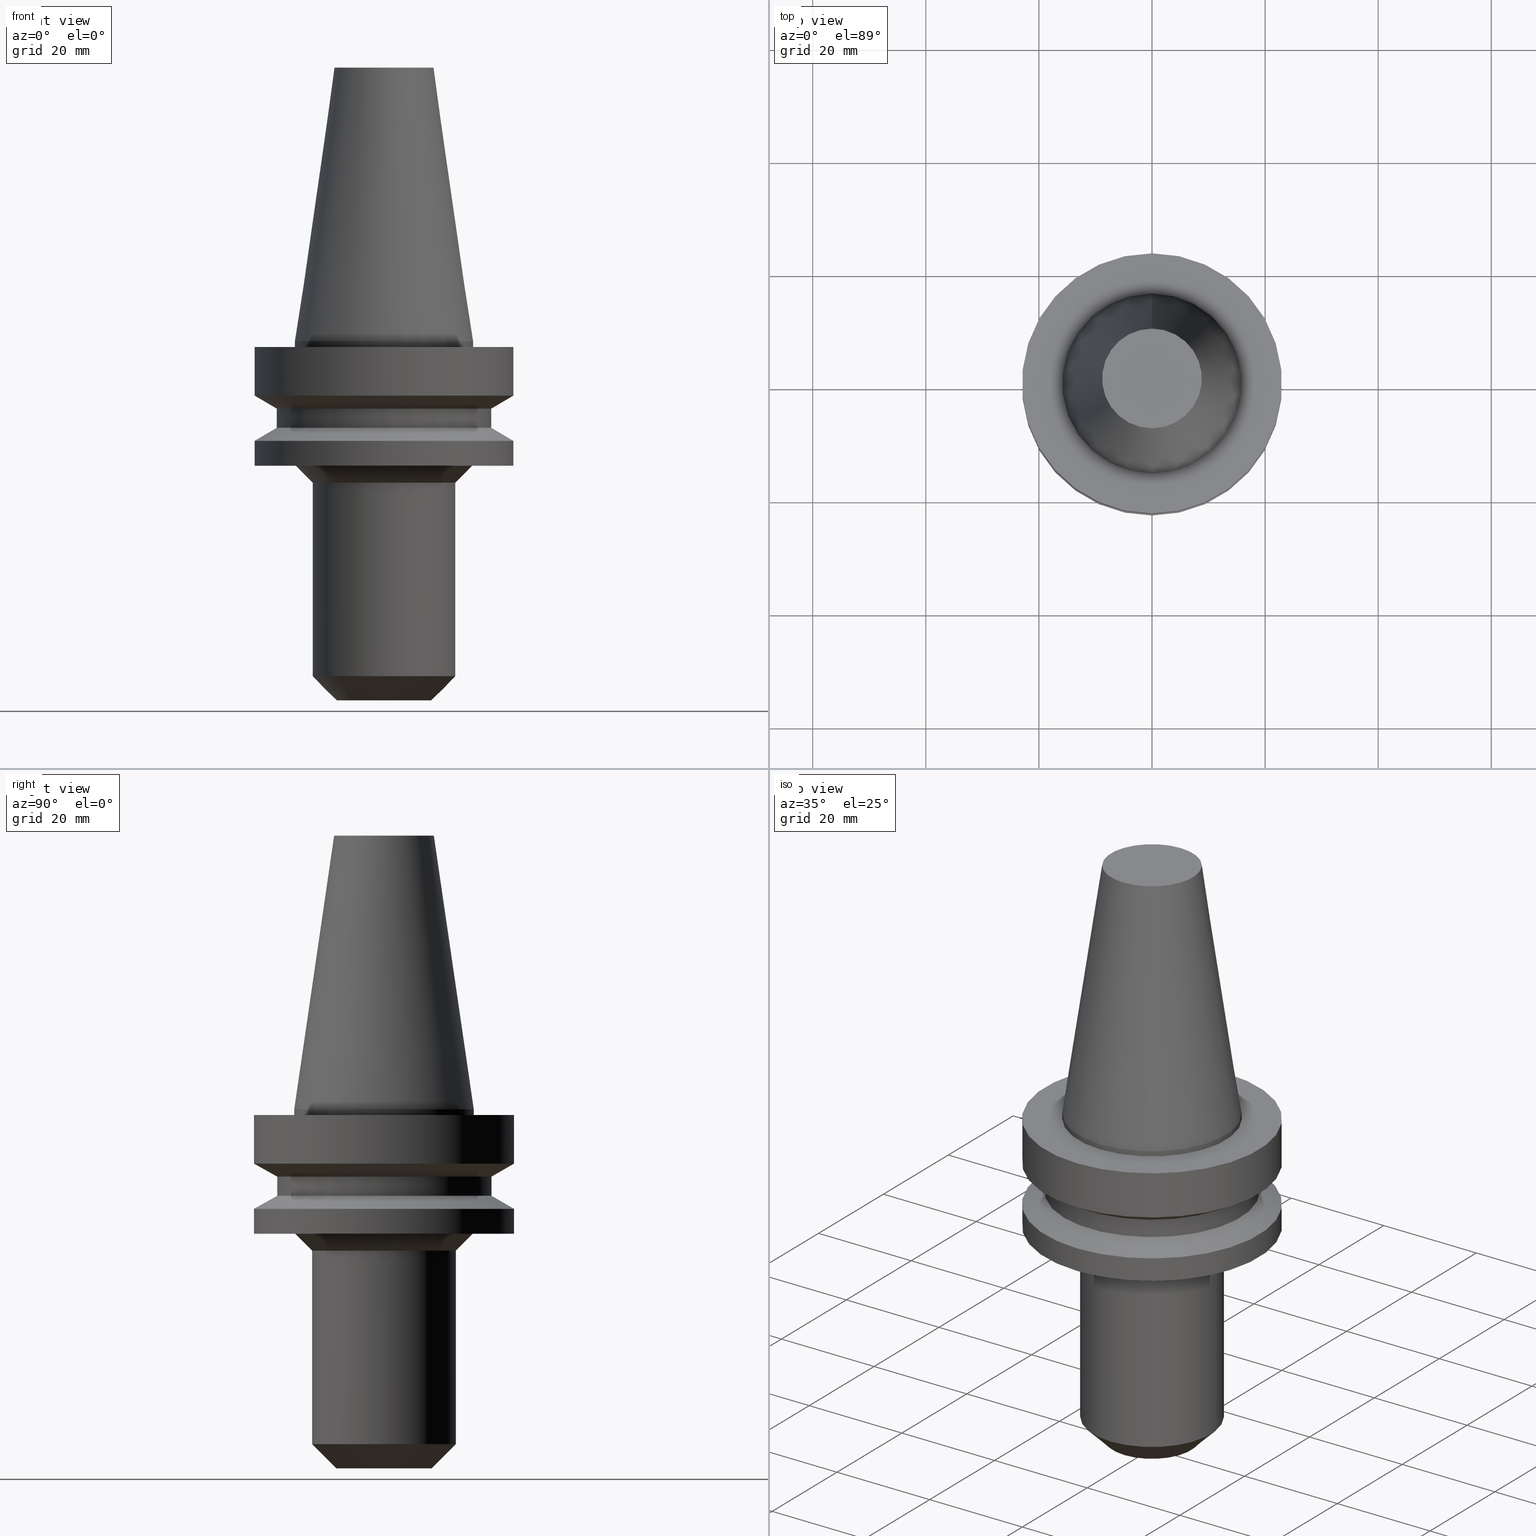
[diagram: canonical four-view strip — front | top / right | iso, engineering-drawing reading convention]
A machine part, canonical four-view strip (front | top / right | iso — engineering-drawing reading convention). The complete STEP part file that produces these views, byte-faithful:
ISO-10303-21;
HEADER;
FILE_DESCRIPTION((''),'1');
FILE_NAME('V:/90_\X2\53D65F9730C730FC30BF\X0\/00_\X2\6DE18DEF30C730FC30BF\X0\/ALL/BBT-BKUS\X2\FF76FF80FF9BFF78FF9E752852A05DE556F3\X0\201801/BBT30-EM/BBT30-EM.375-2.5.stp','2018-02-05T02:01:29',(''),(''),'Spatial Interop R21 SP3','Kubotek KeyCreator 2011 V10.0.2 (22737)',' ');
FILE_SCHEMA(('automotive_design'));
ENDSEC;
DATA;
#1=MECHANICAL_DESIGN_GEOMETRIC_PRESENTATION_REPRESENTATION(' ',(#10,#11,#12,#13,#14,#15,#16,#17,#18,#19,#20,#21,#22,#23,#24,#25,#26,#27,#28,#29,#30,#31,#32,#33,#34,#35,#36,#37),#6);
#2=PRODUCT_DEFINITION_CONTEXT('',#38,'design');
#3=APPLICATION_PROTOCOL_DEFINITION('INTERNATIONAL STANDARD','automotive_design',1994,#38);
#4=PRODUCT_CATEGORY_RELATIONSHIP('NONE','NONE',#39,#40);
#5=SHAPE_DEFINITION_REPRESENTATION(#41,#42);
#6= (GEOMETRIC_REPRESENTATION_CONTEXT(3)GLOBAL_UNCERTAINTY_ASSIGNED_CONTEXT((#45))GLOBAL_UNIT_ASSIGNED_CONTEXT((#47,#48,#49))REPRESENTATION_CONTEXT('NONE','WORKSPACE'));
#10=STYLED_ITEM('',(#51,#52),#53);
#11=STYLED_ITEM('',(#54,#55),#56);
#12=STYLED_ITEM('',(#57,#58),#59);
#13=STYLED_ITEM('',(#60),#61);
#14=STYLED_ITEM('',(#62),#63);
#15=STYLED_ITEM('',(#64),#65);
#16=STYLED_ITEM('',(#66),#67);
#17=STYLED_ITEM('',(#68,#69),#70);
#18=STYLED_ITEM('',(#71),#72);
#19=STYLED_ITEM('',(#73,#74),#75);
#20=STYLED_ITEM('',(#76),#77);
#21=STYLED_ITEM('',(#78),#79);
#22=STYLED_ITEM('',(#80),#81);
#23=STYLED_ITEM('',(#82),#83);
#24=STYLED_ITEM('',(#84),#85);
#25=STYLED_ITEM('',(#86,#87),#88);
#26=STYLED_ITEM('',(#89,#90),#91);
#27=STYLED_ITEM('',(#92,#93),#94);
#28=STYLED_ITEM('',(#95),#96);
#29=STYLED_ITEM('',(#97,#98),#99);
#30=STYLED_ITEM('',(#100,#101),#102);
#31=STYLED_ITEM('',(#103,#104),#105);
#32=STYLED_ITEM('',(#106,#107),#108);
#33=STYLED_ITEM('',(#109,#110),#111);
#34=STYLED_ITEM('',(#112),#113);
#35=STYLED_ITEM('',(#114,#115),#116);
#36=STYLED_ITEM('',(#117,#118),#119);
#37=STYLED_ITEM('',(#120),#121);
#38=APPLICATION_CONTEXT(' ');
#39=PRODUCT_CATEGORY('part','NONE');
#40=PRODUCT_RELATED_PRODUCT_CATEGORY('detail',' ',(#122));
#41=PRODUCT_DEFINITION_SHAPE('NONE','NONE',#123);
#42=ADVANCED_BREP_SHAPE_REPRESENTATION('Unnamed[1]',(#53,#124),#6);
#45=UNCERTAINTY_MEASURE_WITH_UNIT(LENGTH_MEASURE(1.0E-006),#47,'','');
#47= (CONVERSION_BASED_UNIT('MILLIMETRE',#127)LENGTH_UNIT()NAMED_UNIT(#130));
#48= (NAMED_UNIT(#132)PLANE_ANGLE_UNIT()SI_UNIT($,.RADIAN.));
#49= (NAMED_UNIT(#132)SOLID_ANGLE_UNIT()SI_UNIT($,.STERADIAN.));
#51=PRESENTATION_STYLE_ASSIGNMENT((#138));
#52=PRESENTATION_STYLE_ASSIGNMENT((#139));
#53=MANIFOLD_SOLID_BREP('Unnamed[1]',#140);
#54=PRESENTATION_STYLE_ASSIGNMENT((#141));
#55=PRESENTATION_STYLE_ASSIGNMENT((#142));
#56=ADVANCED_FACE('Unnamed[1]',(#143,#144),#145,.T.);
#57=PRESENTATION_STYLE_ASSIGNMENT((#146));
#58=PRESENTATION_STYLE_ASSIGNMENT((#147));
#59=ADVANCED_FACE('Unnamed[1]',(#148),#149,.T.);
#60=PRESENTATION_STYLE_ASSIGNMENT((#150));
#61=EDGE_CURVE('Unnamed[1]',#151,#151,#152,.T.);
#62=PRESENTATION_STYLE_ASSIGNMENT((#153));
#63=EDGE_CURVE('Unnamed[1]',#154,#154,#155,.T.);
#64=PRESENTATION_STYLE_ASSIGNMENT((#156));
#65=EDGE_CURVE('Unnamed[1]',#157,#157,#158,.T.);
#66=PRESENTATION_STYLE_ASSIGNMENT((#159));
#67=EDGE_CURVE('Unnamed[1]',#160,#160,#161,.T.);
#68=PRESENTATION_STYLE_ASSIGNMENT((#162));
#69=PRESENTATION_STYLE_ASSIGNMENT((#163));
#70=ADVANCED_FACE('Unnamed[1]',(#164,#165),#166,.T.);
#71=PRESENTATION_STYLE_ASSIGNMENT((#167));
#72=EDGE_CURVE('Unnamed[1]',#168,#168,#169,.T.);
#73=PRESENTATION_STYLE_ASSIGNMENT((#170));
#74=PRESENTATION_STYLE_ASSIGNMENT((#171));
#75=ADVANCED_FACE('Unnamed[1]',(#172),#173,.T.);
#76=PRESENTATION_STYLE_ASSIGNMENT((#174));
#77=EDGE_CURVE('Unnamed[1]',#175,#175,#176,.T.);
#78=PRESENTATION_STYLE_ASSIGNMENT((#177));
#79=EDGE_CURVE('Unnamed[1]',#178,#178,#179,.T.);
#80=PRESENTATION_STYLE_ASSIGNMENT((#180));
#81=EDGE_CURVE('Unnamed[1]',#181,#181,#182,.T.);
#82=PRESENTATION_STYLE_ASSIGNMENT((#183));
#83=EDGE_CURVE('Unnamed[1]',#184,#184,#185,.T.);
#84=PRESENTATION_STYLE_ASSIGNMENT((#186));
#85=EDGE_CURVE('Unnamed[1]',#187,#187,#188,.T.);
#86=PRESENTATION_STYLE_ASSIGNMENT((#189));
#87=PRESENTATION_STYLE_ASSIGNMENT((#190));
#88=ADVANCED_FACE('Unnamed[1]',(#191,#192),#193,.T.);
#89=PRESENTATION_STYLE_ASSIGNMENT((#194));
#90=PRESENTATION_STYLE_ASSIGNMENT((#195));
#91=ADVANCED_FACE('Unnamed[1]',(#196,#197),#198,.T.);
#92=PRESENTATION_STYLE_ASSIGNMENT((#199));
#93=PRESENTATION_STYLE_ASSIGNMENT((#200));
#94=ADVANCED_FACE('Unnamed[1]',(#201,#202),#203,.T.);
#95=PRESENTATION_STYLE_ASSIGNMENT((#204));
#96=EDGE_CURVE('Unnamed[1]',#205,#205,#206,.T.);
#97=PRESENTATION_STYLE_ASSIGNMENT((#207));
#98=PRESENTATION_STYLE_ASSIGNMENT((#208));
#99=ADVANCED_FACE('Unnamed[1]',(#209,#210),#211,.T.);
#100=PRESENTATION_STYLE_ASSIGNMENT((#212));
#101=PRESENTATION_STYLE_ASSIGNMENT((#213));
#102=ADVANCED_FACE('Unnamed[1]',(#214,#215),#216,.T.);
#103=PRESENTATION_STYLE_ASSIGNMENT((#217));
#104=PRESENTATION_STYLE_ASSIGNMENT((#218));
#105=ADVANCED_FACE('Unnamed[1]',(#219,#220),#221,.T.);
#106=PRESENTATION_STYLE_ASSIGNMENT((#222));
#107=PRESENTATION_STYLE_ASSIGNMENT((#223));
#108=ADVANCED_FACE('Unnamed[1]',(#224,#225),#226,.T.);
#109=PRESENTATION_STYLE_ASSIGNMENT((#227));
#110=PRESENTATION_STYLE_ASSIGNMENT((#228));
#111=ADVANCED_FACE('Unnamed[1]',(#229,#230),#231,.T.);
#112=PRESENTATION_STYLE_ASSIGNMENT((#232));
#113=EDGE_CURVE('Unnamed[1]',#233,#233,#234,.T.);
#114=PRESENTATION_STYLE_ASSIGNMENT((#235));
#115=PRESENTATION_STYLE_ASSIGNMENT((#236));
#116=ADVANCED_FACE('Unnamed[1]',(#237,#238),#239,.T.);
#117=PRESENTATION_STYLE_ASSIGNMENT((#240));
#118=PRESENTATION_STYLE_ASSIGNMENT((#241));
#119=ADVANCED_FACE('Unnamed[1]',(#242,#243),#244,.T.);
#120=PRESENTATION_STYLE_ASSIGNMENT((#245));
#121=EDGE_CURVE('Unnamed[1]',#246,#246,#247,.T.);
#122=PRODUCT('Unnamed[1]','Unnamed[1]','PART-Unnamed[1]-DESC',(#248));
#123=PRODUCT_DEFINITION('NONE','NONE',#249,#2);
#124=AXIS2_PLACEMENT_3D('',#250,#251,#252);
#127=LENGTH_MEASURE_WITH_UNIT(LENGTH_MEASURE(1.0),#253);
#130=DIMENSIONAL_EXPONENTS(1.0,0.0,0.0,0.0,0.0,0.0,0.0);
#132=DIMENSIONAL_EXPONENTS(0.0,0.0,0.0,0.0,0.0,0.0,0.0);
#138=SURFACE_STYLE_USAGE(.BOTH.,#254);
#139=CURVE_STYLE('',#255,POSITIVE_LENGTH_MEASURE(1000.0),#256);
#140=CLOSED_SHELL('',(#59,#88,#105,#108,#70,#91,#94,#99,#119,#111,#116,#56,#102,#75));
#141=SURFACE_STYLE_USAGE(.BOTH.,#257);
#142=CURVE_STYLE('',#258,POSITIVE_LENGTH_MEASURE(1000.0),#259);
#143=FACE_BOUND('',#260,.T.);
#144=FACE_BOUND('',#261,.T.);
#145=CYLINDRICAL_SURFACE('',#262,12.7000000000001);
#146=SURFACE_STYLE_USAGE(.BOTH.,#263);
#147=CURVE_STYLE('',#264,POSITIVE_LENGTH_MEASURE(1000.0),#265);
#148=FACE_OUTER_BOUND('',#266,.T.);
#149=PLANE('',#267);
#150=CURVE_STYLE('',#268,POSITIVE_LENGTH_MEASURE(1000.0),#269);
#151=VERTEX_POINT('',#270);
#152=CIRCLE('',#271,8.81650000198669);
#153=CURVE_STYLE('',#272,POSITIVE_LENGTH_MEASURE(1000.0),#273);
#154=VERTEX_POINT('',#274);
#155=CIRCLE('',#275,23.0);
#156=CURVE_STYLE('',#276,POSITIVE_LENGTH_MEASURE(1000.0),#277);
#157=VERTEX_POINT('',#278);
#158=CIRCLE('',#279,12.7000000000001);
#159=CURVE_STYLE('',#280,POSITIVE_LENGTH_MEASURE(1000.0),#281);
#160=VERTEX_POINT('',#282);
#161=CIRCLE('',#283,15.875);
#162=SURFACE_STYLE_USAGE(.BOTH.,#284);
#163=CURVE_STYLE('',#285,POSITIVE_LENGTH_MEASURE(1000.0),#286);
#164=FACE_BOUND('',#287,.T.);
#165=FACE_BOUND('',#288,.T.);
#166=CYLINDRICAL_SURFACE('',#289,23.0);
#167=CURVE_STYLE('',#290,POSITIVE_LENGTH_MEASURE(1000.0),#291);
#168=VERTEX_POINT('',#292);
#169=CIRCLE('',#293,19.0);
#170=SURFACE_STYLE_USAGE(.BOTH.,#294);
#171=CURVE_STYLE('',#295,POSITIVE_LENGTH_MEASURE(1000.0),#296);
#172=FACE_OUTER_BOUND('',#297,.T.);
#173=PLANE('',#298);
#174=CURVE_STYLE('',#299,POSITIVE_LENGTH_MEASURE(1000.0),#300);
#175=VERTEX_POINT('',#301);
#176=CIRCLE('',#302,23.0);
#177=CURVE_STYLE('',#303,POSITIVE_LENGTH_MEASURE(1000.0),#304);
#178=VERTEX_POINT('',#305);
#179=CIRCLE('',#306,8.39999999999989);
#180=CURVE_STYLE('',#307,POSITIVE_LENGTH_MEASURE(1000.0),#308);
#181=VERTEX_POINT('',#309);
#182=CIRCLE('',#310,12.7000000000001);
#183=CURVE_STYLE('',#311,POSITIVE_LENGTH_MEASURE(1000.0),#312);
#184=VERTEX_POINT('',#313);
#185=CIRCLE('',#314,15.875);
#186=CURVE_STYLE('',#315,POSITIVE_LENGTH_MEASURE(1000.0),#316);
#187=VERTEX_POINT('',#317);
#188=CIRCLE('',#318,19.0);
#189=SURFACE_STYLE_USAGE(.BOTH.,#319);
#190=CURVE_STYLE('',#320,POSITIVE_LENGTH_MEASURE(1000.0),#321);
#191=FACE_BOUND('',#322,.T.);
#192=FACE_BOUND('',#323,.T.);
#193=CONICAL_SURFACE('',#324,12.3457500009933,0.144815870013619);
#194=SURFACE_STYLE_USAGE(.BOTH.,#325);
#195=CURVE_STYLE('',#326,POSITIVE_LENGTH_MEASURE(1000.0),#327);
#196=FACE_BOUND('',#328,.T.);
#197=FACE_BOUND('',#329,.T.);
#198=CONICAL_SURFACE('',#330,21.0,1.04719755058881);
#199=SURFACE_STYLE_USAGE(.BOTH.,#331);
#200=CURVE_STYLE('',#332,POSITIVE_LENGTH_MEASURE(1000.0),#333);
#201=FACE_BOUND('',#334,.T.);
#202=FACE_BOUND('',#335,.T.);
#203=CYLINDRICAL_SURFACE('',#336,19.0);
#204=CURVE_STYLE('',#337,POSITIVE_LENGTH_MEASURE(1000.0),#338);
#205=VERTEX_POINT('',#339);
#206=CIRCLE('',#340,15.7000000000001);
#207=SURFACE_STYLE_USAGE(.BOTH.,#341);
#208=CURVE_STYLE('',#342,POSITIVE_LENGTH_MEASURE(1000.0),#343);
#209=FACE_BOUND('',#344,.T.);
#210=FACE_BOUND('',#345,.T.);
#211=CONICAL_SURFACE('',#346,21.0,1.04719755058882);
#212=SURFACE_STYLE_USAGE(.BOTH.,#347);
#213=CURVE_STYLE('',#348,POSITIVE_LENGTH_MEASURE(1000.0),#349);
#214=FACE_BOUND('',#350,.T.);
#215=FACE_BOUND('',#351,.T.);
#216=CONICAL_SURFACE('',#352,10.55,0.785398163397519);
#217=SURFACE_STYLE_USAGE(.BOTH.,#353);
#218=CURVE_STYLE('',#354,POSITIVE_LENGTH_MEASURE(1000.0),#355);
#219=FACE_BOUND('',#356,.T.);
#220=FACE_BOUND('',#357,.T.);
#221=CYLINDRICAL_SURFACE('',#358,15.875);
#222=SURFACE_STYLE_USAGE(.BOTH.,#359);
#223=CURVE_STYLE('',#360,POSITIVE_LENGTH_MEASURE(1000.0),#361);
#224=FACE_OUTER_BOUND('',#362,.T.);
#225=FACE_BOUND('',#363,.T.);
#226=PLANE('',#364);
#227=SURFACE_STYLE_USAGE(.BOTH.,#365);
#228=CURVE_STYLE('',#366,POSITIVE_LENGTH_MEASURE(1000.0),#367);
#229=FACE_BOUND('',#368,.T.);
#230=FACE_OUTER_BOUND('',#369,.T.);
#231=PLANE('',#370);
#232=CURVE_STYLE('',#371,POSITIVE_LENGTH_MEASURE(1000.0),#372);
#233=VERTEX_POINT('',#373);
#234=CIRCLE('',#374,23.0);
#235=SURFACE_STYLE_USAGE(.BOTH.,#375);
#236=CURVE_STYLE('',#376,POSITIVE_LENGTH_MEASURE(1000.0),#377);
#237=FACE_BOUND('',#378,.T.);
#238=FACE_BOUND('',#379,.T.);
#239=CONICAL_SURFACE('',#380,14.2000000000001,0.785398163397448);
#240=SURFACE_STYLE_USAGE(.BOTH.,#381);
#241=CURVE_STYLE('',#382,POSITIVE_LENGTH_MEASURE(1000.0),#383);
#242=FACE_BOUND('',#384,.T.);
#243=FACE_BOUND('',#385,.T.);
#244=CYLINDRICAL_SURFACE('',#386,23.0);
#245=CURVE_STYLE('',#387,POSITIVE_LENGTH_MEASURE(1000.0),#388);
#246=VERTEX_POINT('',#389);
#247=CIRCLE('',#390,23.0);
#248=PRODUCT_CONTEXT('',#38,'mechanical');
#249=PRODUCT_DEFINITION_FORMATION_WITH_SPECIFIED_SOURCE(' ','NONE',#122,.NOT_KNOWN.);
#250=CARTESIAN_POINT('',(0.0,0.0,0.0));
#251=DIRECTION('',(0.0,0.0,1.0));
#252=DIRECTION('',(1.0,0.0,0.0));
#253= (NAMED_UNIT(#130)LENGTH_UNIT()SI_UNIT(.MILLI.,.METRE.));
#254=SURFACE_SIDE_STYLE('',(#392));
#255=DRAUGHTING_PRE_DEFINED_CURVE_FONT('continuous');
#256=COLOUR_RGB('',0.0,1.0,0.0);
#257=SURFACE_SIDE_STYLE('',(#393));
#258=DRAUGHTING_PRE_DEFINED_CURVE_FONT('continuous');
#259=COLOUR_RGB('',0.0,1.0,0.0);
#260=EDGE_LOOP('',(#394));
#261=EDGE_LOOP('',(#395));
#262=AXIS2_PLACEMENT_3D('',#396,#397,#398);
#263=SURFACE_SIDE_STYLE('',(#399));
#264=DRAUGHTING_PRE_DEFINED_CURVE_FONT('continuous');
#265=COLOUR_RGB('',0.0,1.0,0.0);
#266=EDGE_LOOP('',(#400));
#267=AXIS2_PLACEMENT_3D('',#401,#402,#403);
#268=DRAUGHTING_PRE_DEFINED_CURVE_FONT('continuous');
#269=COLOUR_RGB('',0.0,1.0,0.0);
#270=CARTESIAN_POINT('',(-2.96364525393659E-015,8.81650000198669,48.4));
#271=AXIS2_PLACEMENT_3D('',#404,#405,#406);
#272=DRAUGHTING_PRE_DEFINED_CURVE_FONT('continuous');
#273=COLOUR_RGB('',0.0,1.0,0.0);
#274=CARTESIAN_POINT('',(5.87830463590729E-016,23.0,-9.59999999999999));
#275=AXIS2_PLACEMENT_3D('',#407,#408,#409);
#276=DRAUGHTING_PRE_DEFINED_CURVE_FONT('continuous');
#277=COLOUR_RGB('',0.0,1.0,0.0);
#278=CARTESIAN_POINT('',(1.53080849893419E-015,12.7000000000001,-25.0));
#279=AXIS2_PLACEMENT_3D('',#410,#411,#412);
#280=DRAUGHTING_PRE_DEFINED_CURVE_FONT('continuous');
#281=COLOUR_RGB('',0.0,1.0,0.0);
#282=CARTESIAN_POINT('',(6.12323399573675E-017,15.875,-0.999999999999998));
#283=AXIS2_PLACEMENT_3D('',#413,#414,#415);
#284=SURFACE_SIDE_STYLE('',(#416));
#285=DRAUGHTING_PRE_DEFINED_CURVE_FONT('continuous');
#286=COLOUR_RGB('',0.0,1.0,0.0);
#287=EDGE_LOOP('',(#417));
#288=EDGE_LOOP('',(#418));
#289=AXIS2_PLACEMENT_3D('',#419,#420,#421);
#290=DRAUGHTING_PRE_DEFINED_CURVE_FONT('continuous');
#291=COLOUR_RGB('',0.0,1.0,0.0);
#292=CARTESIAN_POINT('',(9.36279151221199E-016,19.0,-15.29059892));
#293=AXIS2_PLACEMENT_3D('',#422,#423,#424);
#294=SURFACE_SIDE_STYLE('',(#425));
#295=DRAUGHTING_PRE_DEFINED_CURVE_FONT('continuous');
#296=COLOUR_RGB('',0.0,1.0,0.0);
#297=EDGE_LOOP('',(#426));
#298=AXIS2_PLACEMENT_3D('',#427,#428,#429);
#299=DRAUGHTING_PRE_DEFINED_CURVE_FONT('continuous');
#300=COLOUR_RGB('',0.0,1.0,0.0);
#301=CARTESIAN_POINT('',(1.34711147906209E-015,23.0,-22.0));
#302=AXIS2_PLACEMENT_3D('',#430,#431,#432);
#303=DRAUGHTING_PRE_DEFINED_CURVE_FONT('continuous');
#304=COLOUR_RGB('',0.0,1.0,0.0);
#305=CARTESIAN_POINT('',(3.88825358729285E-015,8.3999999999999,-63.5));
#306=AXIS2_PLACEMENT_3D('',#433,#434,#435);
#307=DRAUGHTING_PRE_DEFINED_CURVE_FONT('continuous');
#308=COLOUR_RGB('',0.0,1.0,0.0);
#309=CARTESIAN_POINT('',(3.62495452547619E-015,12.7000000000001,-59.2000000000004));
#310=AXIS2_PLACEMENT_3D('',#436,#437,#438);
#311=DRAUGHTING_PRE_DEFINED_CURVE_FONT('continuous');
#312=COLOUR_RGB('',0.0,1.0,0.0);
#313=CARTESIAN_POINT('',(-1.95674482349743E-031,15.875,1.94412679364642E-015));
#314=AXIS2_PLACEMENT_3D('',#439,#440,#441);
#315=DRAUGHTING_PRE_DEFINED_CURVE_FONT('continuous');
#316=COLOUR_RGB('',0.0,1.0,0.0);
#317=CARTESIAN_POINT('',(7.29240495619202E-016,19.0,-11.90940108));
#318=AXIS2_PLACEMENT_3D('',#442,#443,#444);
#319=SURFACE_SIDE_STYLE('',(#445));
#320=DRAUGHTING_PRE_DEFINED_CURVE_FONT('continuous');
#321=COLOUR_RGB('',0.0,1.0,0.0);
#322=EDGE_LOOP('',(#446));
#323=EDGE_LOOP('',(#447));
#324=AXIS2_PLACEMENT_3D('',#448,#449,#450);
#325=SURFACE_SIDE_STYLE('',(#451));
#326=DRAUGHTING_PRE_DEFINED_CURVE_FONT('continuous');
#327=COLOUR_RGB('',0.0,1.0,0.0);
#328=EDGE_LOOP('',(#452));
#329=EDGE_LOOP('',(#453));
#330=AXIS2_PLACEMENT_3D('',#454,#455,#456);
#331=SURFACE_SIDE_STYLE('',(#457));
#332=DRAUGHTING_PRE_DEFINED_CURVE_FONT('continuous');
#333=COLOUR_RGB('',0.0,1.0,0.0);
#334=EDGE_LOOP('',(#458));
#335=EDGE_LOOP('',(#459));
#336=AXIS2_PLACEMENT_3D('',#460,#461,#462);
#337=DRAUGHTING_PRE_DEFINED_CURVE_FONT('continuous');
#338=COLOUR_RGB('',0.0,1.0,0.0);
#339=CARTESIAN_POINT('',(1.34711147906209E-015,15.7000000000001,-22.0));
#340=AXIS2_PLACEMENT_3D('',#463,#464,#465);
#341=SURFACE_SIDE_STYLE('',(#466));
#342=DRAUGHTING_PRE_DEFINED_CURVE_FONT('continuous');
#343=COLOUR_RGB('',0.0,1.0,0.0);
#344=EDGE_LOOP('',(#467));
#345=EDGE_LOOP('',(#468));
#346=AXIS2_PLACEMENT_3D('',#469,#470,#471);
#347=SURFACE_SIDE_STYLE('',(#472));
#348=DRAUGHTING_PRE_DEFINED_CURVE_FONT('continuous');
#349=COLOUR_RGB('',0.0,1.0,0.0);
#350=EDGE_LOOP('',(#473));
#351=EDGE_LOOP('',(#474));
#352=AXIS2_PLACEMENT_3D('',#475,#476,#477);
#353=SURFACE_SIDE_STYLE('',(#478));
#354=DRAUGHTING_PRE_DEFINED_CURVE_FONT('continuous');
#355=COLOUR_RGB('',0.0,1.0,0.0);
#356=EDGE_LOOP('',(#479));
#357=EDGE_LOOP('',(#480));
#358=AXIS2_PLACEMENT_3D('',#481,#482,#483);
#359=SURFACE_SIDE_STYLE('',(#484));
#360=DRAUGHTING_PRE_DEFINED_CURVE_FONT('continuous');
#361=COLOUR_RGB('',0.0,1.0,0.0);
#362=EDGE_LOOP('',(#485));
#363=EDGE_LOOP('',(#486));
#364=AXIS2_PLACEMENT_3D('',#487,#488,#489);
#365=SURFACE_SIDE_STYLE('',(#490));
#366=DRAUGHTING_PRE_DEFINED_CURVE_FONT('continuous');
#367=COLOUR_RGB('',0.0,1.0,0.0);
#368=EDGE_LOOP('',(#491));
#369=EDGE_LOOP('',(#492));
#370=AXIS2_PLACEMENT_3D('',#493,#494,#495);
#371=DRAUGHTING_PRE_DEFINED_CURVE_FONT('continuous');
#372=COLOUR_RGB('',0.0,1.0,0.0);
#373=CARTESIAN_POINT('',(1.07768918324967E-015,23.0,-17.6));
#374=AXIS2_PLACEMENT_3D('',#496,#497,#498);
#375=SURFACE_SIDE_STYLE('',(#499));
#376=DRAUGHTING_PRE_DEFINED_CURVE_FONT('continuous');
#377=COLOUR_RGB('',0.0,1.0,0.0);
#378=EDGE_LOOP('',(#500));
#379=EDGE_LOOP('',(#501));
#380=AXIS2_PLACEMENT_3D('',#502,#503,#504);
#381=SURFACE_SIDE_STYLE('',(#505));
#382=DRAUGHTING_PRE_DEFINED_CURVE_FONT('continuous');
#383=COLOUR_RGB('',0.0,1.0,0.0);
#384=EDGE_LOOP('',(#506));
#385=EDGE_LOOP('',(#507));
#386=AXIS2_PLACEMENT_3D('',#508,#509,#510);
#387=DRAUGHTING_PRE_DEFINED_CURVE_FONT('continuous');
#388=COLOUR_RGB('',0.0,1.0,0.0);
#389=CARTESIAN_POINT('',(6.12323399573674E-017,23.0,-0.999999999999997));
#390=AXIS2_PLACEMENT_3D('',#511,#512,#513);
#392=SURFACE_STYLE_FILL_AREA(#514);
#393=SURFACE_STYLE_FILL_AREA(#515);
#394=ORIENTED_EDGE('',*,*,#81,.F.);
#395=ORIENTED_EDGE('',*,*,#65,.T.);
#396=CARTESIAN_POINT('',(2.57788151220519E-015,5.15576302441038E-015,-42.1000000000002));
#397=DIRECTION('',(6.12323399573677E-017,1.22464679914735E-016,-1.0));
#398=DIRECTION('',(-1.23259516440783E-032,1.0,1.22464679914735E-016));
#399=SURFACE_STYLE_FILL_AREA(#516);
#400=ORIENTED_EDGE('',*,*,#61,.F.);
#401=CARTESIAN_POINT('',(-2.96364525393659E-015,4.40825000099334,48.4));
#402=DIRECTION('',(-6.12323399573677E-017,-1.22464679914735E-016,1.0));
#403=DIRECTION('',(1.23259516440783E-032,-1.0,-1.22464679914735E-016));
#404=CARTESIAN_POINT('',(-2.96364525393659E-015,-5.92729050787319E-015,48.4));
#405=DIRECTION('',(6.12323399573677E-017,1.22464679914735E-016,-1.0));
#406=DIRECTION('',(-1.23259516440783E-032,1.0,1.22464679914735E-016));
#407=CARTESIAN_POINT('',(5.87830463590729E-016,1.17566092718146E-015,-9.59999999999999));
#408=DIRECTION('',(6.12323399573677E-017,1.22464679914735E-016,-1.0));
#409=DIRECTION('',(-1.23259516440783E-032,1.0,1.22464679914735E-016));
#410=CARTESIAN_POINT('',(1.53080849893419E-015,3.06161699786839E-015,-25.0));
#411=DIRECTION('',(6.12323399573677E-017,1.22464679914735E-016,-1.0));
#412=DIRECTION('',(-1.23259516440783E-032,1.0,1.22464679914735E-016));
#413=CARTESIAN_POINT('',(6.12323399573677E-017,1.22464679914735E-016,-1.0));
#414=DIRECTION('',(6.12323399573677E-017,1.22464679914735E-016,-1.0));
#415=DIRECTION('',(-1.23259516440783E-032,1.0,1.22464679914735E-016));
#416=SURFACE_STYLE_FILL_AREA(#517);
#417=ORIENTED_EDGE('',*,*,#63,.F.);
#418=ORIENTED_EDGE('',*,*,#121,.T.);
#419=CARTESIAN_POINT('',(3.24531401774048E-016,6.49062803548097E-016,-5.3));
#420=DIRECTION('',(6.12323399573677E-017,1.22464679914735E-016,-1.0));
#421=DIRECTION('',(-1.23259516440783E-032,1.0,1.22464679914735E-016));
#422=CARTESIAN_POINT('',(9.36279151221199E-016,1.8725583024424E-015,-15.29059892));
#423=DIRECTION('',(6.12323399573677E-017,1.22464679914735E-016,-1.0));
#424=DIRECTION('',(-1.23259516440783E-032,1.0,1.22464679914735E-016));
#425=SURFACE_STYLE_FILL_AREA(#518);
#426=ORIENTED_EDGE('',*,*,#79,.T.);
#427=CARTESIAN_POINT('',(3.88825358729285E-015,4.19999999999995,-63.5));
#428=DIRECTION('',(6.12323399573677E-017,-3.26107215703817E-015,-1.0));
#429=DIRECTION('',(1.94855926214498E-031,1.0,-3.26107215703817E-015));
#430=CARTESIAN_POINT('',(1.34711147906209E-015,2.69422295812418E-015,-22.0));
#431=DIRECTION('',(6.12323399573677E-017,1.22464679914735E-016,-1.0));
#432=DIRECTION('',(-1.23259516440783E-032,1.0,1.22464679914735E-016));
#433=CARTESIAN_POINT('',(3.88825358729285E-015,7.77650717458569E-015,-63.5));
#434=DIRECTION('',(6.12323399573677E-017,1.22464679914735E-016,-1.0));
#435=DIRECTION('',(-1.23259516440783E-032,1.0,1.22464679914735E-016));
#436=CARTESIAN_POINT('',(3.62495452547619E-015,7.24990905095238E-015,-59.2000000000004));
#437=DIRECTION('',(6.12323399573677E-017,1.22464679914735E-016,-1.0));
#438=DIRECTION('',(-1.23259516440783E-032,1.0,1.22464679914735E-016));
#439=CARTESIAN_POINT('',(0.0,0.0,0.0));
#440=DIRECTION('',(6.12323399573677E-017,1.22464679914735E-016,-1.0));
#441=DIRECTION('',(-1.23259516440783E-032,1.0,1.22464679914735E-016));
#442=CARTESIAN_POINT('',(7.29240495619202E-016,1.4584809912384E-015,-11.90940108));
#443=DIRECTION('',(6.12323399573677E-017,1.22464679914735E-016,-1.0));
#444=DIRECTION('',(-1.23259516440783E-032,1.0,1.22464679914735E-016));
#445=SURFACE_STYLE_FILL_AREA(#519);
#446=ORIENTED_EDGE('',*,*,#83,.F.);
#447=ORIENTED_EDGE('',*,*,#61,.T.);
#448=CARTESIAN_POINT('',(-1.4818226269683E-015,-2.96364525393659E-015,24.2));
#449=DIRECTION('',(6.12323399573677E-017,1.22464679914735E-016,-1.0));
#450=DIRECTION('',(-1.23259516440783E-032,1.0,1.22464679914735E-016));
#451=SURFACE_STYLE_FILL_AREA(#520);
#452=ORIENTED_EDGE('',*,*,#85,.F.);
#453=ORIENTED_EDGE('',*,*,#63,.T.);
#454=CARTESIAN_POINT('',(6.58535479604966E-016,1.31707095920993E-015,-10.75470054));
#455=DIRECTION('',(-6.12323399573677E-017,-1.22464679914735E-016,1.0));
#456=DIRECTION('',(-1.23259516440783E-032,1.0,1.22464679914735E-016));
#457=SURFACE_STYLE_FILL_AREA(#521);
#458=ORIENTED_EDGE('',*,*,#72,.F.);
#459=ORIENTED_EDGE('',*,*,#85,.T.);
#460=CARTESIAN_POINT('',(8.32759823420201E-016,1.6655196468404E-015,-13.6));
#461=DIRECTION('',(6.12323399573677E-017,1.22464679914735E-016,-1.0));
#462=DIRECTION('',(-1.23259516440783E-032,1.0,1.22464679914735E-016));
#463=CARTESIAN_POINT('',(1.34711147906209E-015,2.69422295812418E-015,-22.0));
#464=DIRECTION('',(6.12323399573676E-017,1.22464679914735E-016,-1.0));
#465=DIRECTION('',(-1.23259516440783E-032,1.0,1.22464679914735E-016));
#466=SURFACE_STYLE_FILL_AREA(#522);
#467=ORIENTED_EDGE('',*,*,#113,.F.);
#468=ORIENTED_EDGE('',*,*,#72,.T.);
#469=CARTESIAN_POINT('',(1.00698416723543E-015,2.01396833447087E-015,-16.44529946));
#470=DIRECTION('',(6.12323399573677E-017,1.22464679914735E-016,-1.0));
#471=DIRECTION('',(-1.23259516440783E-032,1.0,1.22464679914735E-016));
#472=SURFACE_STYLE_FILL_AREA(#523);
#473=ORIENTED_EDGE('',*,*,#79,.F.);
#474=ORIENTED_EDGE('',*,*,#81,.T.);
#475=CARTESIAN_POINT('',(3.75660405638452E-015,7.51320811276903E-015,-61.3500000000002));
#476=DIRECTION('',(-6.12323399573677E-017,-1.22464679914735E-016,1.0));
#477=DIRECTION('',(-1.23259516440783E-032,1.0,1.22464679914735E-016));
#478=SURFACE_STYLE_FILL_AREA(#524);
#479=ORIENTED_EDGE('',*,*,#67,.F.);
#480=ORIENTED_EDGE('',*,*,#83,.T.);
#481=CARTESIAN_POINT('',(3.06161699786838E-017,6.12323399573676E-017,-0.5));
#482=DIRECTION('',(6.12323399573677E-017,1.22464679914735E-016,-1.0));
#483=DIRECTION('',(-1.23259516440783E-032,1.0,1.22464679914735E-016));
#484=SURFACE_STYLE_FILL_AREA(#525);
#485=ORIENTED_EDGE('',*,*,#121,.F.);
#486=ORIENTED_EDGE('',*,*,#67,.T.);
#487=CARTESIAN_POINT('',(6.12323399573674E-017,19.4375,-0.999999999999998));
#488=DIRECTION('',(-6.12323399573677E-017,-1.22464679914735E-016,1.0));
#489=DIRECTION('',(1.23259516440783E-032,-1.0,-1.22464679914735E-016));
#490=SURFACE_STYLE_FILL_AREA(#526);
#491=ORIENTED_EDGE('',*,*,#96,.F.);
#492=ORIENTED_EDGE('',*,*,#77,.T.);
#493=CARTESIAN_POINT('',(1.34711147906209E-015,19.3500000000001,-22.0));
#494=DIRECTION('',(6.12323399573677E-017,1.22464679914735E-016,-1.0));
#495=DIRECTION('',(-1.23259516440783E-032,1.0,1.22464679914735E-016));
#496=CARTESIAN_POINT('',(1.07768918324967E-015,2.15537836649934E-015,-17.6));
#497=DIRECTION('',(6.12323399573677E-017,1.22464679914735E-016,-1.0));
#498=DIRECTION('',(-1.23259516440783E-032,1.0,1.22464679914735E-016));
#499=SURFACE_STYLE_FILL_AREA(#527);
#500=ORIENTED_EDGE('',*,*,#65,.F.);
#501=ORIENTED_EDGE('',*,*,#96,.T.);
#502=CARTESIAN_POINT('',(1.43895998899814E-015,2.87791997799628E-015,-23.5));
#503=DIRECTION('',(-6.12323399573677E-017,-1.22464679914735E-016,1.0));
#504=DIRECTION('',(-1.23259516440783E-032,1.0,1.22464679914735E-016));
#505=SURFACE_STYLE_FILL_AREA(#528);
#506=ORIENTED_EDGE('',*,*,#77,.F.);
#507=ORIENTED_EDGE('',*,*,#113,.T.);
#508=CARTESIAN_POINT('',(1.21240033115588E-015,2.42480066231176E-015,-19.8));
#509=DIRECTION('',(6.12323399573677E-017,1.22464679914735E-016,-1.0));
#510=DIRECTION('',(-1.23259516440783E-032,1.0,1.22464679914735E-016));
#511=CARTESIAN_POINT('',(6.12323399573677E-017,1.22464679914735E-016,-1.0));
#512=DIRECTION('',(6.12323399573677E-017,1.22464679914735E-016,-1.0));
#513=DIRECTION('',(-1.23259516440783E-032,1.0,1.22464679914735E-016));
#514=FILL_AREA_STYLE('',(#529));
#515=FILL_AREA_STYLE('',(#530));
#516=FILL_AREA_STYLE('',(#531));
#517=FILL_AREA_STYLE('',(#532));
#518=FILL_AREA_STYLE('',(#533));
#519=FILL_AREA_STYLE('',(#534));
#520=FILL_AREA_STYLE('',(#535));
#521=FILL_AREA_STYLE('',(#536));
#522=FILL_AREA_STYLE('',(#537));
#523=FILL_AREA_STYLE('',(#538));
#524=FILL_AREA_STYLE('',(#539));
#525=FILL_AREA_STYLE('',(#540));
#526=FILL_AREA_STYLE('',(#541));
#527=FILL_AREA_STYLE('',(#542));
#528=FILL_AREA_STYLE('',(#543));
#529=FILL_AREA_STYLE_COLOUR('',#544);
#530=FILL_AREA_STYLE_COLOUR('',#545);
#531=FILL_AREA_STYLE_COLOUR('',#546);
#532=FILL_AREA_STYLE_COLOUR('',#547);
#533=FILL_AREA_STYLE_COLOUR('',#548);
#534=FILL_AREA_STYLE_COLOUR('',#549);
#535=FILL_AREA_STYLE_COLOUR('',#550);
#536=FILL_AREA_STYLE_COLOUR('',#551);
#537=FILL_AREA_STYLE_COLOUR('',#552);
#538=FILL_AREA_STYLE_COLOUR('',#553);
#539=FILL_AREA_STYLE_COLOUR('',#554);
#540=FILL_AREA_STYLE_COLOUR('',#555);
#541=FILL_AREA_STYLE_COLOUR('',#556);
#542=FILL_AREA_STYLE_COLOUR('',#557);
#543=FILL_AREA_STYLE_COLOUR('',#558);
#544=COLOUR_RGB('',0.0,1.0,0.0);
#545=COLOUR_RGB('',0.0,1.0,0.0);
#546=COLOUR_RGB('',0.0,1.0,0.0);
#547=COLOUR_RGB('',0.0,1.0,0.0);
#548=COLOUR_RGB('',0.0,1.0,0.0);
#549=COLOUR_RGB('',0.0,1.0,0.0);
#550=COLOUR_RGB('',0.0,1.0,0.0);
#551=COLOUR_RGB('',0.0,1.0,0.0);
#552=COLOUR_RGB('',0.0,1.0,0.0);
#553=COLOUR_RGB('',0.0,1.0,0.0);
#554=COLOUR_RGB('',0.0,1.0,0.0);
#555=COLOUR_RGB('',0.0,1.0,0.0);
#556=COLOUR_RGB('',0.0,1.0,0.0);
#557=COLOUR_RGB('',0.0,1.0,0.0);
#558=COLOUR_RGB('',0.0,1.0,0.0);
ENDSEC;
END-ISO-10303-21;
